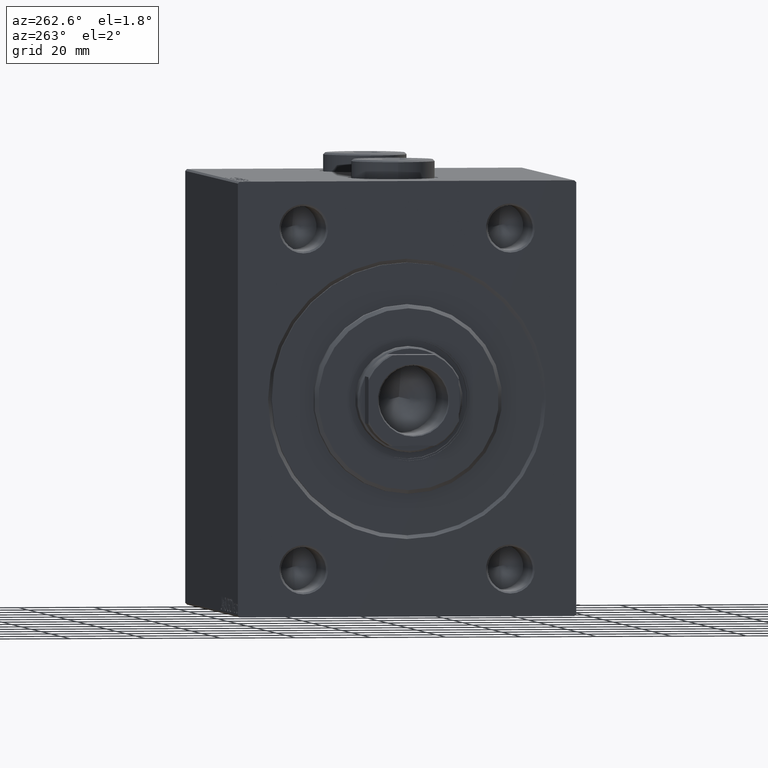
[diagram: clean part render]
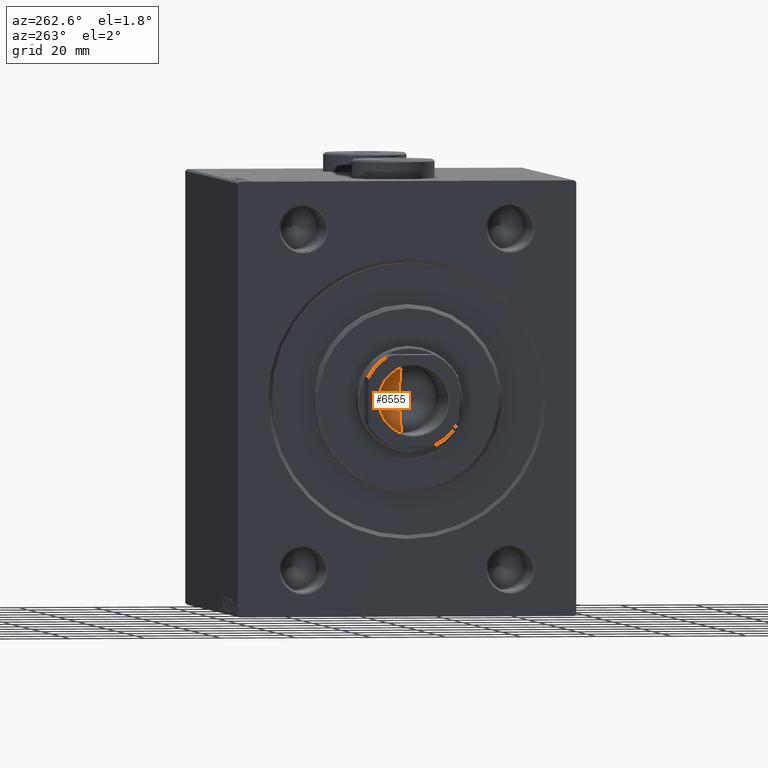
[diagram: same view with one face highlighted and labeled with its STEP entity id]
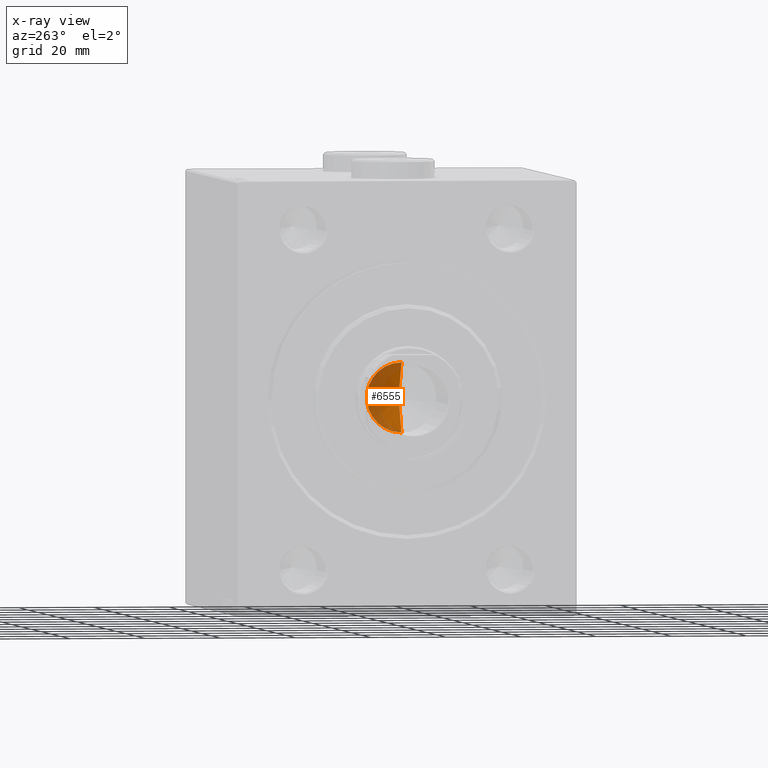
[diagram: x-ray of the same camera — body ghosted, the highlighted face saturated]
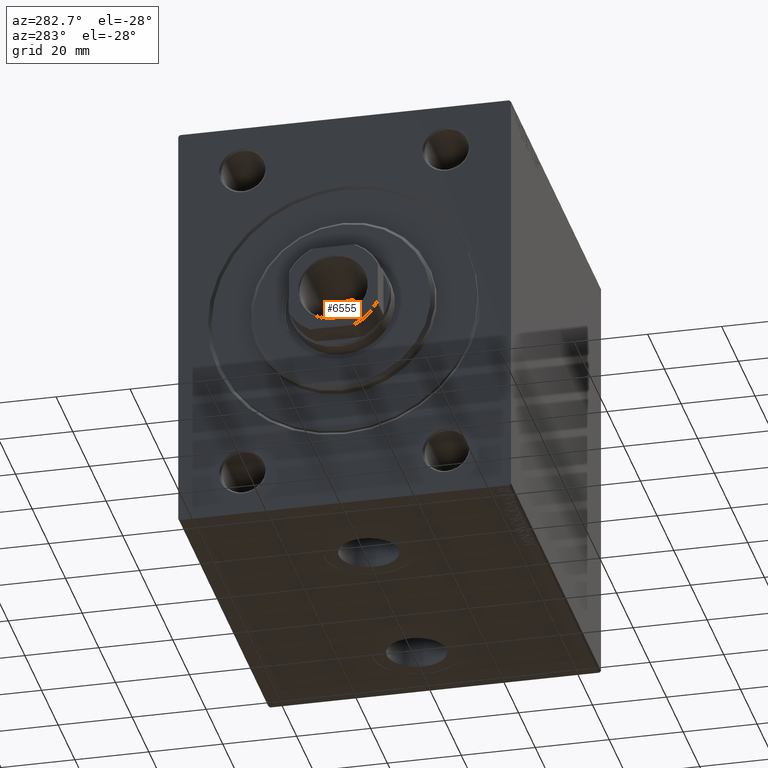
[diagram: same view with one face highlighted and labeled with its STEP entity id]
A machine part, auxiliary view. The second image highlights one B-rep face of the part: STEP entity #6555.
The next image is the same camera in x-ray: the body ghosted, the highlighted face saturated — about 46% of this face is hidden behind the body in this view.
A second angle (auxiliary view) of the same face is appended — the face is thin or edge-on in the first view.
In plain terms, the highlighted conical surface has half-angle 59 deg.
Its self-contained STEP definition (entity closure, byte-faithful):
#3840 = VERTEX_POINT ( 'NONE', #34549 ) ;
#4247 = AXIS2_PLACEMENT_3D ( 'NONE', #33242, #4372, #33021 ) ;
#4369 = EDGE_CURVE ( 'NONE', #36591, #3840, #5354, .T. ) ;
#4372 = DIRECTION ( 'NONE',  ( -0.000000000000000000, -0.000000000000000000, 1.000000000000000000 ) ) ;
#4637 = ORIENTED_EDGE ( 'NONE', *, *, #16434, .F. ) ;
#4974 = CONICAL_SURFACE ( 'NONE', #4247, 9.249999999999994671, 1.029744258676652535 ) ;
#5296 = VECTOR ( 'NONE', #28241, 1000.000000000000000 ) ;
#5354 = LINE ( 'NONE', #20990, #38826 ) ;
#6555 = ADVANCED_FACE ( 'NONE', ( #36021 ), #4974, .F. ) ;
#8113 = VERTEX_POINT ( 'NONE', #13993 ) ;
#12059 = ORIENTED_EDGE ( 'NONE', *, *, #43981, .T. ) ;
#13028 = CARTESIAN_POINT ( 'NONE',  ( -9.249999999999994671, 1.132798289211300909E-15, 79.00000000000001421 ) ) ;
#13086 = DIRECTION ( 'NONE',  ( 1.000000000000000000, 0.000000000000000000, 0.000000000000000000 ) ) ;
#13993 = CARTESIAN_POINT ( 'NONE',  ( -9.249999999999994671, 1.132798289211300909E-15, 79.00000000000001421 ) ) ;
#16434 = EDGE_CURVE ( 'NONE', #36591, #8113, #44672, .T. ) ;
#19568 = EDGE_LOOP ( 'NONE', ( #4637, #44890, #12059 ) ) ;
#19588 = CIRCLE ( 'NONE', #40247, 9.249999999999994671 ) ;
#20375 = CARTESIAN_POINT ( 'NONE',  ( -6.793016015247754405E-15, 0.000000000000000000, 73.44203927399506426 ) ) ;
#20990 = CARTESIAN_POINT ( 'NONE',  ( 9.249999999999994671, 0.000000000000000000, 79.00000000000001421 ) ) ;
#27908 = DIRECTION ( 'NONE',  ( 0.8571673007021113344, 0.000000000000000000, 0.5150380749100558209 ) ) ;
#28241 = DIRECTION ( 'NONE',  ( -0.8571673007021113344, 1.049727191138617463E-16, 0.5150380749100558209 ) ) ;
#33021 = DIRECTION ( 'NONE',  ( 1.000000000000000000, 0.000000000000000000, 0.000000000000000000 ) ) ;
#33242 = CARTESIAN_POINT ( 'NONE',  ( 0.000000000000000000, 0.000000000000000000, 79.00000000000001421 ) ) ;
#34549 = CARTESIAN_POINT ( 'NONE',  ( 9.249999999999994671, 0.000000000000000000, 79.00000000000001421 ) ) ;
#36021 = FACE_OUTER_BOUND ( 'NONE', #19568, .T. ) ;
#36591 = VERTEX_POINT ( 'NONE', #20375 ) ;
#38012 = DIRECTION ( 'NONE',  ( -0.000000000000000000, -0.000000000000000000, 1.000000000000000000 ) ) ;
#38826 = VECTOR ( 'NONE', #27908, 1000.000000000000000 ) ;
#40247 = AXIS2_PLACEMENT_3D ( 'NONE', #45627, #38012, #13086 ) ;
#43981 = EDGE_CURVE ( 'NONE', #3840, #8113, #19588, .T. ) ;
#44672 = LINE ( 'NONE', #13028, #5296 ) ;
#44890 = ORIENTED_EDGE ( 'NONE', *, *, #4369, .T. ) ;
#45627 = CARTESIAN_POINT ( 'NONE',  ( 0.000000000000000000, 0.000000000000000000, 79.00000000000001421 ) ) ;